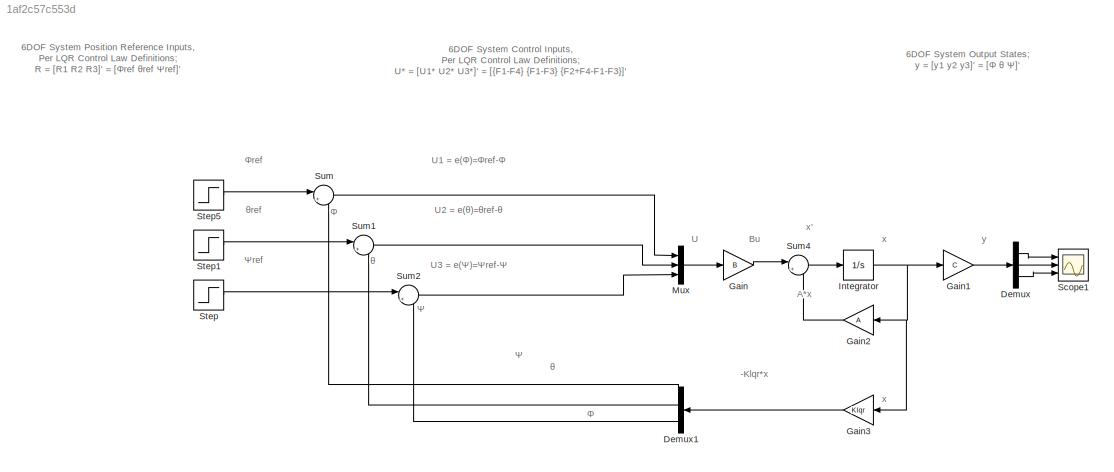
MODEL slx_1af2c57c553d
KIND model
CONFIG AbsTol = auto
CONFIG EnableMultiTasking = off
CONFIG FixedStep = auto
CONFIG MaxStep = auto
CONFIG MinStep = auto
CONFIG RelTol = 1e-3
CONFIG SampleTimeConstraint = Unconstrained
CONFIG SolverName = VariableStepAuto
CONFIG StartTime = 0.0
CONFIG StopTime = 10.0
BLOCK [Demux] Demux
  Outputs = 3
  Ports = [1, 3]
BLOCK [Demux] Demux1
  Outputs = 3
  Ports = [1, 3]
BLOCK [Gain] Gain
  AttributesFormatString = State-Space B*u
  Gain = B
  Multiplication = Matrix(K*u)
BLOCK [Gain] Gain1
  AttributesFormatString = State-Space C*x
  Gain = C
  Multiplication = Matrix(K*u)
BLOCK [Gain] Gain2
  AttributesFormatString = State-Space A*x
  Gain = A
  Multiplication = Matrix(K*u)
BLOCK [Gain] Gain3
  AttributesFormatString = LQR Feeback Gain
  Gain = Klqr
  Multiplication = Matrix(K*u)
BLOCK [Integrator] Integrator
  AttributesFormatString = Extract Current States
  Ports = [1, 1]
BLOCK [Mux] Mux
  DisplayOption = bar
  Inputs = 3
  Ports = [3, 1]
BLOCK [Scope] Scope1
  AttributesFormatString = Quadcopter Euler Angle\nOutputs
  Floating = off
  NumInputPorts = 3
  Ports = [3]
  ScopeSpecificationString = Simulink.scopes.TimeScopeBlockCfg('CurrentConfiguration', extmgr.ConfigurationSet(extmgr.Configuration('Core','General UI',true),extmgr.Configuration('Core','Source UI',true),extmgr.Configuration('Sources','WiredSimulink',true),extmgr.Configuration('Visuals','Time Domain',true,'SerializedDisplays',{struct('MinYLimReal','-0.57403','MaxYLimReal','1.80247','YLabelReal','','MinYLimMag','0.00000','MaxY...<+1461ch>
BLOCK [Step] Step
  After = 1.5
  SampleTime = 0
BLOCK [Step] Step1
  After = -2
  SampleTime = 0
BLOCK [Step] Step5
  SampleTime = 0
BLOCK [Sum] Sum
  Inputs = |+-
  Ports = [2, 1]
BLOCK [Sum] Sum1
  Inputs = |+-
  Ports = [2, 1]
BLOCK [Sum] Sum2
  Inputs = |+-
  Ports = [2, 1]
BLOCK [Sum] Sum4
  Inputs = |++
  Ports = [2, 1]
ANNOTATION (root): Ψ
ANNOTATION (root): Ψ ref
ANNOTATION (root): Φ
ANNOTATION (root): Φ ref
ANNOTATION (root): θ
ANNOTATION (root): θ ref
ANNOTATION (root): 6DOF System Control Inputs, Per LQR Control Law Definitions; U * = [ U 1 * U 2 * U 3 * ]' = [{F1-F4} {F1-F3} {F2+F4-F1-F3}]'
ANNOTATION (root): 6DOF System Output States; y = [y 1 y 2 y 3 ]' = [ Φ θ Ψ ]'
ANNOTATION (root): 6DOF System Position Reference Inputs, Per LQR Control Law Definitions; R = [R1 R2 R3]' = [ Φ ref θref Ψref ]'
ANNOTATION (root): - K lqr *x
ANNOTATION (root): A*x
ANNOTATION (root): Bu
ANNOTATION (root): U
ANNOTATION (root): U 3 = e( Ψ )= Ψ ref- Ψ
ANNOTATION (root): U 1 = e( Φ )= Φ ref- Φ
ANNOTATION (root): U 2 = e( θ )= θ ref- θ
ANNOTATION (root): x'
ANNOTATION (root): x
ANNOTATION (root): y
LINE Demux1:1 -> Sum:2
LINE Demux1:2 -> Sum1:2
LINE Demux1:3 -> Sum2:2
LINE Demux:1 -> Scope1:1
LINE Demux:2 -> Scope1:2
LINE Demux:3 -> Scope1:3
LINE Gain1:1 -> Demux:1
LINE Gain2:1 -> Sum4:2
LINE Gain3:1 -> Demux1:1
LINE Gain:1 -> Sum4:1
NET Integrator:1 -> Gain1:1, Gain2:1, Gain3:1
LINE Mux:1 -> Gain:1
LINE Step1:1 -> Sum1:1
LINE Step5:1 -> Sum:1
LINE Step:1 -> Sum2:1
LINE Sum1:1 -> Mux:2
LINE Sum2:1 -> Mux:3
LINE Sum4:1 -> Integrator:1
LINE Sum:1 -> Mux:1
note: NET lines group one-source signal fan-out (src -> all destinations, sorted); 1:1 wires keep LINE
